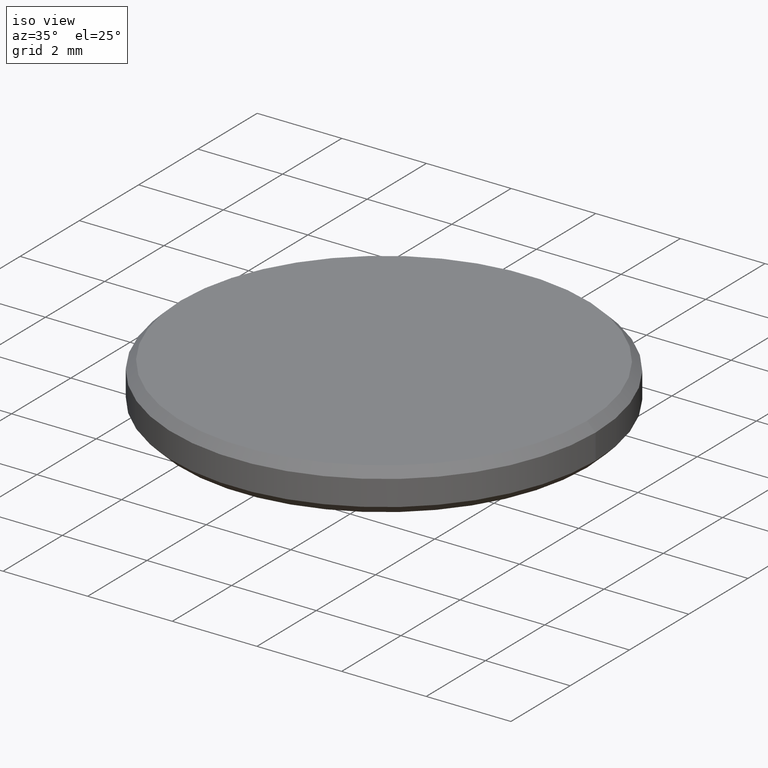
[diagram: clean part render]
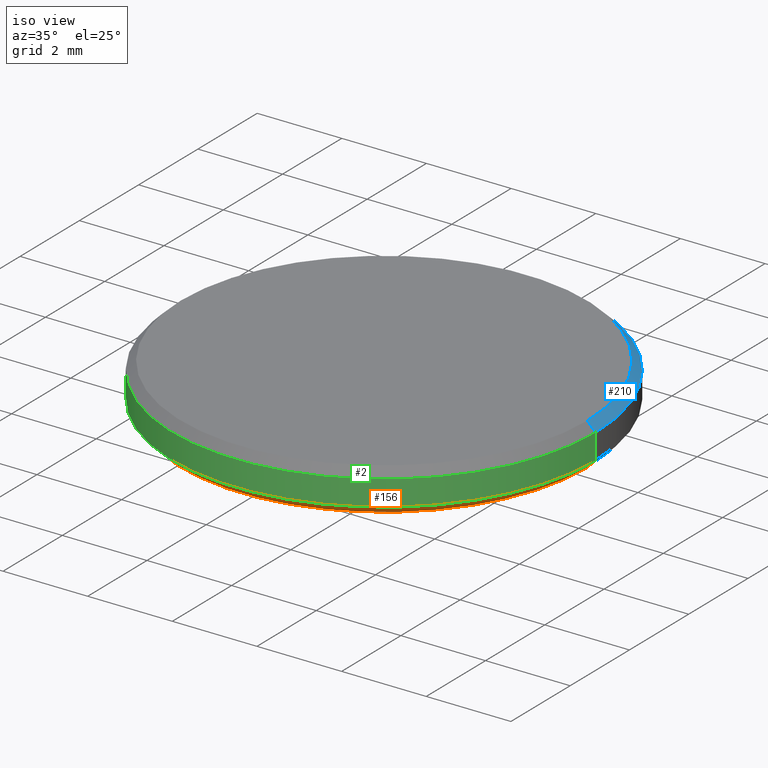
[diagram: same view with three faces highlighted in distinct colors, each labeled with its STEP entity id]
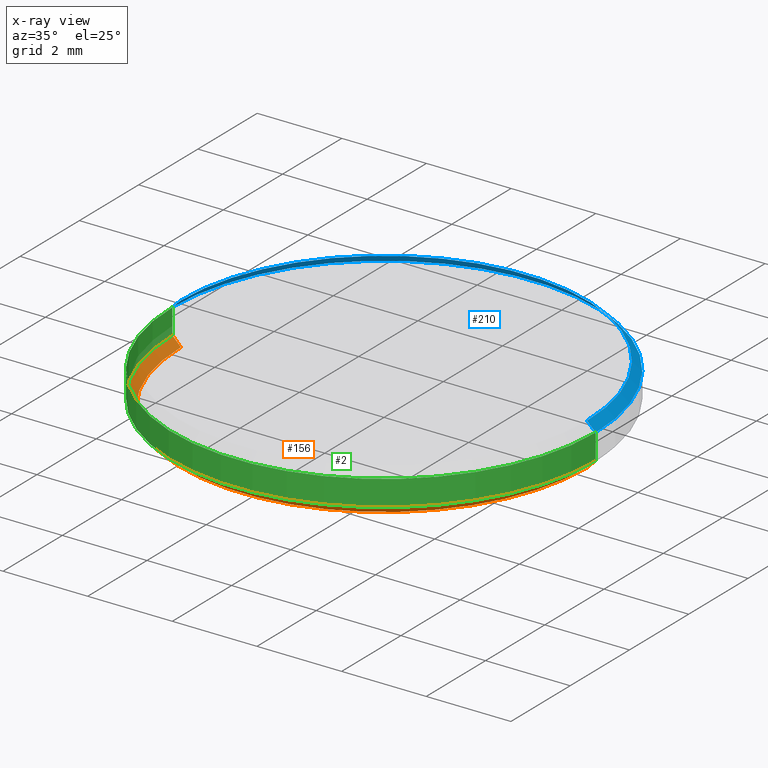
[diagram: x-ray of the same camera — body ghosted, the three highlighted faces saturated]
A machine part, iso view with three faces highlighted in distinct colors.
The next image is the same camera in x-ray (body ghosted, the three faces saturated) — at least one of them is partly hidden behind the body in this view.
Their STEP definitions:

[orange] entity #156 — the highlighted conical surface has half-angle 45 deg.
#1 = CIRCLE ( 'NONE', #95, 5.000000000000000000 ) ;
#11 = DIRECTION ( 'NONE',  ( -0.000000000000000000, -0.000000000000000000, 1.000000000000000000 ) ) ;
#12 = VERTEX_POINT ( 'NONE', #229 ) ;
#13 = CARTESIAN_POINT ( 'NONE',  ( 0.000000000000000000, 0.000000000000000000, 0.1999999999999996503 ) ) ;
#16 = ORIENTED_EDGE ( 'NONE', *, *, #185, .F. ) ;
#23 = LINE ( 'NONE', #226, #158 ) ;
#27 = DIRECTION ( 'NONE',  ( 1.000000000000000000, 0.000000000000000000, 0.000000000000000000 ) ) ;
#29 = VERTEX_POINT ( 'NONE', #228 ) ;
#30 = ORIENTED_EDGE ( 'NONE', *, *, #183, .T. ) ;
#43 = CARTESIAN_POINT ( 'NONE',  ( 5.000000000000000000, 0.000000000000000000, 0.1999999999999996503 ) ) ;
#44 = DIRECTION ( 'NONE',  ( 1.000000000000000000, 0.000000000000000000, 0.000000000000000000 ) ) ;
#66 = CARTESIAN_POINT ( 'NONE',  ( 0.000000000000000000, 0.000000000000000000, 0.000000000000000000 ) ) ;
#73 = ORIENTED_EDGE ( 'NONE', *, *, #201, .F. ) ;
#75 = CIRCLE ( 'NONE', #104, 4.799999999999999822 ) ;
#95 = AXIS2_PLACEMENT_3D ( 'NONE', #13, #161, #27 ) ;
#104 = AXIS2_PLACEMENT_3D ( 'NONE', #66, #196, #44 ) ;
#115 = CONICAL_SURFACE ( 'NONE', #173, 5.000000000000000000, 0.7853981633974503884 ) ;
#123 = VERTEX_POINT ( 'NONE', #213 ) ;
#133 = FACE_OUTER_BOUND ( 'NONE', #160, .T. ) ;
#135 = CARTESIAN_POINT ( 'NONE',  ( 5.000000000000000000, 6.123233995736766282E-16, 0.1999999999999996503 ) ) ;
#143 = EDGE_CURVE ( 'NONE', #123, #29, #23, .T. ) ;
#144 = VECTOR ( 'NONE', #214, 1000.000000000000000 ) ;
#156 = ADVANCED_FACE ( 'NONE', ( #133 ), #115, .T. ) ;
#157 = CARTESIAN_POINT ( 'NONE',  ( 0.000000000000000000, 0.000000000000000000, 0.1999999999999996503 ) ) ;
#158 = VECTOR ( 'NONE', #197, 1000.000000000000000 ) ;
#160 = EDGE_LOOP ( 'NONE', ( #221, #16, #30, #73 ) ) ;
#161 = DIRECTION ( 'NONE',  ( -0.000000000000000000, -0.000000000000000000, 1.000000000000000000 ) ) ;
#173 = AXIS2_PLACEMENT_3D ( 'NONE', #157, #11, #231 ) ;
#183 = EDGE_CURVE ( 'NONE', #12, #220, #236, .T. ) ;
#185 = EDGE_CURVE ( 'NONE', #12, #123, #75, .T. ) ;
#196 = DIRECTION ( 'NONE',  ( -0.000000000000000000, -0.000000000000000000, -1.000000000000000000 ) ) ;
#197 = DIRECTION ( 'NONE',  ( -0.7071067811865490160, 8.659560562354950115E-17, 0.7071067811865459074 ) ) ;
#201 = EDGE_CURVE ( 'NONE', #29, #220, #1, .T. ) ;
#213 = CARTESIAN_POINT ( 'NONE',  ( -4.799999999999999822, 6.000769315822029754E-16, 0.000000000000000000 ) ) ;
#214 = DIRECTION ( 'NONE',  ( 0.7071067811865490160, 0.000000000000000000, 0.7071067811865459074 ) ) ;
#220 = VERTEX_POINT ( 'NONE', #135 ) ;
#221 = ORIENTED_EDGE ( 'NONE', *, *, #143, .F. ) ;
#226 = CARTESIAN_POINT ( 'NONE',  ( -5.000000000000000000, 6.123233995736765296E-16, 0.1999999999999996503 ) ) ;
#228 = CARTESIAN_POINT ( 'NONE',  ( -5.000000000000000000, 0.000000000000000000, 0.1999999999999996503 ) ) ;
#229 = CARTESIAN_POINT ( 'NONE',  ( 4.799999999999999822, 0.000000000000000000, 0.000000000000000000 ) ) ;
#231 = DIRECTION ( 'NONE',  ( 1.000000000000000000, 0.000000000000000000, 0.000000000000000000 ) ) ;
#236 = LINE ( 'NONE', #43, #144 ) ;

[blue] entity #210 — the highlighted conical surface has half-angle 45 deg.
#3 = DIRECTION ( 'NONE',  ( 0.000000000000000000, 0.000000000000000000, 1.000000000000000000 ) ) ;
#6 = AXIS2_PLACEMENT_3D ( 'NONE', #80, #127, #113 ) ;
#10 = EDGE_CURVE ( 'NONE', #31, #140, #55, .T. ) ;
#18 = EDGE_LOOP ( 'NONE', ( #67, #182, #162, #105 ) ) ;
#28 = CARTESIAN_POINT ( 'NONE',  ( -4.800000000000002487, 0.000000000000000000, 1.000000000000000000 ) ) ;
#31 = VERTEX_POINT ( 'NONE', #169 ) ;
#35 = CIRCLE ( 'NONE', #151, 4.800000000000002487 ) ;
#41 = DIRECTION ( 'NONE',  ( -1.000000000000000000, 0.000000000000000000, 0.000000000000000000 ) ) ;
#46 = VERTEX_POINT ( 'NONE', #61 ) ;
#55 = CIRCLE ( 'NONE', #6, 5.000000000000000000 ) ;
#60 = EDGE_CURVE ( 'NONE', #163, #46, #35, .T. ) ;
#61 = CARTESIAN_POINT ( 'NONE',  ( -4.800000000000002487, 0.000000000000000000, 1.000000000000000000 ) ) ;
#62 = VECTOR ( 'NONE', #118, 1000.000000000000114 ) ;
#63 = CARTESIAN_POINT ( 'NONE',  ( 0.000000000000000000, 0.000000000000000000, 1.000000000000000000 ) ) ;
#67 = ORIENTED_EDGE ( 'NONE', *, *, #60, .F. ) ;
#68 = DIRECTION ( 'NONE',  ( 0.000000000000000000, 0.000000000000000000, -1.000000000000000000 ) ) ;
#80 = CARTESIAN_POINT ( 'NONE',  ( 0.000000000000000000, 0.000000000000000000, 0.8000000000000012657 ) ) ;
#89 = LINE ( 'NONE', #28, #62 ) ;
#97 = DIRECTION ( 'NONE',  ( 1.000000000000000000, 0.000000000000000000, 0.000000000000000000 ) ) ;
#99 = DIRECTION ( 'NONE',  ( 0.7071067811865460184, 8.659560562354913137E-17, -0.7071067811865489050 ) ) ;
#102 = EDGE_CURVE ( 'NONE', #163, #140, #209, .T. ) ;
#105 = ORIENTED_EDGE ( 'NONE', *, *, #150, .F. ) ;
#113 = DIRECTION ( 'NONE',  ( 1.000000000000000000, 0.000000000000000000, 0.000000000000000000 ) ) ;
#117 = CARTESIAN_POINT ( 'NONE',  ( 4.800000000000002487, 6.000769315822031726E-16, 1.000000000000000000 ) ) ;
#118 = DIRECTION ( 'NONE',  ( -0.7071067811865460184, 0.000000000000000000, -0.7071067811865489050 ) ) ;
#122 = CONICAL_SURFACE ( 'NONE', #139, 4.800000000000002487, 0.7853981633974461696 ) ;
#127 = DIRECTION ( 'NONE',  ( 0.000000000000000000, 0.000000000000000000, -1.000000000000000000 ) ) ;
#130 = CARTESIAN_POINT ( 'NONE',  ( 0.000000000000000000, 0.000000000000000000, 1.000000000000000000 ) ) ;
#131 = FACE_OUTER_BOUND ( 'NONE', #18, .T. ) ;
#139 = AXIS2_PLACEMENT_3D ( 'NONE', #63, #68, #41 ) ;
#140 = VERTEX_POINT ( 'NONE', #146 ) ;
#146 = CARTESIAN_POINT ( 'NONE',  ( 5.000000000000000000, 6.123233995736766282E-16, 0.8000000000000012657 ) ) ;
#150 = EDGE_CURVE ( 'NONE', #46, #31, #89, .T. ) ;
#151 = AXIS2_PLACEMENT_3D ( 'NONE', #130, #3, #97 ) ;
#162 = ORIENTED_EDGE ( 'NONE', *, *, #10, .F. ) ;
#163 = VERTEX_POINT ( 'NONE', #117 ) ;
#169 = CARTESIAN_POINT ( 'NONE',  ( -5.000000000000000000, 0.000000000000000000, 0.8000000000000012657 ) ) ;
#182 = ORIENTED_EDGE ( 'NONE', *, *, #102, .T. ) ;
#190 = VECTOR ( 'NONE', #99, 1000.000000000000114 ) ;
#208 = CARTESIAN_POINT ( 'NONE',  ( 4.800000000000002487, 5.878304635907297169E-16, 1.000000000000000000 ) ) ;
#209 = LINE ( 'NONE', #208, #190 ) ;
#210 = ADVANCED_FACE ( 'NONE', ( #131 ), #122, .T. ) ;

[green] entity #2 — the highlighted cylindrical surface (partial cylindrical patch) has radius 5 mm, axis along (-0, -0, -1).
#1 = CIRCLE ( 'NONE', #95, 5.000000000000000000 ) ;
#2 = ADVANCED_FACE ( 'NONE', ( #70 ), #137, .T. ) ;
#13 = CARTESIAN_POINT ( 'NONE',  ( 0.000000000000000000, 0.000000000000000000, 0.1999999999999996503 ) ) ;
#15 = CARTESIAN_POINT ( 'NONE',  ( 0.000000000000000000, 0.000000000000000000, 1.000000000000000000 ) ) ;
#26 = EDGE_CURVE ( 'NONE', #140, #31, #94, .T. ) ;
#27 = DIRECTION ( 'NONE',  ( 1.000000000000000000, 0.000000000000000000, 0.000000000000000000 ) ) ;
#29 = VERTEX_POINT ( 'NONE', #228 ) ;
#31 = VERTEX_POINT ( 'NONE', #169 ) ;
#33 = VECTOR ( 'NONE', #206, 1000.000000000000000 ) ;
#34 = DIRECTION ( 'NONE',  ( -0.000000000000000000, -0.000000000000000000, -1.000000000000000000 ) ) ;
#37 = CARTESIAN_POINT ( 'NONE',  ( 5.000000000000000000, 6.123233995736766282E-16, 1.000000000000000000 ) ) ;
#39 = DIRECTION ( 'NONE',  ( -0.000000000000000000, -0.000000000000000000, -1.000000000000000000 ) ) ;
#69 = EDGE_CURVE ( 'NONE', #140, #220, #171, .T. ) ;
#70 = FACE_OUTER_BOUND ( 'NONE', #136, .T. ) ;
#76 = CARTESIAN_POINT ( 'NONE',  ( -5.000000000000000000, 0.000000000000000000, 1.000000000000000000 ) ) ;
#94 = CIRCLE ( 'NONE', #230, 5.000000000000000000 ) ;
#95 = AXIS2_PLACEMENT_3D ( 'NONE', #13, #161, #27 ) ;
#103 = ORIENTED_EDGE ( 'NONE', *, *, #119, .T. ) ;
#107 = DIRECTION ( 'NONE',  ( -1.000000000000000000, 0.000000000000000000, 0.000000000000000000 ) ) ;
#119 = EDGE_CURVE ( 'NONE', #31, #29, #125, .T. ) ;
#124 = ORIENTED_EDGE ( 'NONE', *, *, #69, .F. ) ;
#125 = LINE ( 'NONE', #76, #33 ) ;
#126 = CARTESIAN_POINT ( 'NONE',  ( 0.000000000000000000, 0.000000000000000000, 0.8000000000000012657 ) ) ;
#135 = CARTESIAN_POINT ( 'NONE',  ( 5.000000000000000000, 6.123233995736766282E-16, 0.1999999999999996503 ) ) ;
#136 = EDGE_LOOP ( 'NONE', ( #124, #235, #103, #202 ) ) ;
#137 = CYLINDRICAL_SURFACE ( 'NONE', #138, 5.000000000000000000 ) ;
#138 = AXIS2_PLACEMENT_3D ( 'NONE', #15, #34, #107 ) ;
#140 = VERTEX_POINT ( 'NONE', #146 ) ;
#142 = VECTOR ( 'NONE', #39, 1000.000000000000000 ) ;
#146 = CARTESIAN_POINT ( 'NONE',  ( 5.000000000000000000, 6.123233995736766282E-16, 0.8000000000000012657 ) ) ;
#148 = DIRECTION ( 'NONE',  ( 1.000000000000000000, 0.000000000000000000, 0.000000000000000000 ) ) ;
#161 = DIRECTION ( 'NONE',  ( -0.000000000000000000, -0.000000000000000000, 1.000000000000000000 ) ) ;
#169 = CARTESIAN_POINT ( 'NONE',  ( -5.000000000000000000, 0.000000000000000000, 0.8000000000000012657 ) ) ;
#171 = LINE ( 'NONE', #37, #142 ) ;
#201 = EDGE_CURVE ( 'NONE', #29, #220, #1, .T. ) ;
#202 = ORIENTED_EDGE ( 'NONE', *, *, #201, .T. ) ;
#206 = DIRECTION ( 'NONE',  ( -0.000000000000000000, -0.000000000000000000, -1.000000000000000000 ) ) ;
#220 = VERTEX_POINT ( 'NONE', #135 ) ;
#227 = DIRECTION ( 'NONE',  ( 0.000000000000000000, 0.000000000000000000, -1.000000000000000000 ) ) ;
#228 = CARTESIAN_POINT ( 'NONE',  ( -5.000000000000000000, 0.000000000000000000, 0.1999999999999996503 ) ) ;
#230 = AXIS2_PLACEMENT_3D ( 'NONE', #126, #227, #148 ) ;
#235 = ORIENTED_EDGE ( 'NONE', *, *, #26, .T. ) ;